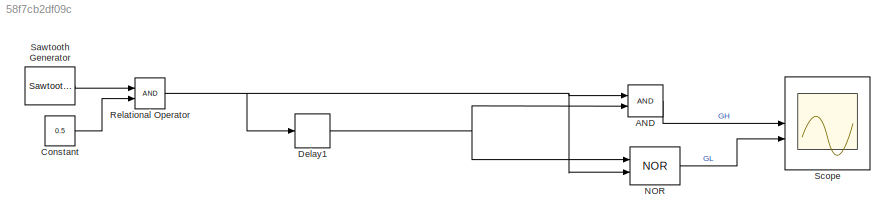
MODEL slx_58f7cb2df09c
KIND model
CONFIG AbsTol = auto
CONFIG EnableMultiTasking = off
CONFIG FixedStep = auto
CONFIG MaxStep = auto
CONFIG MinStep = auto
CONFIG PreLoadFcn = Fs = 10e4\nTs = 1/Fs\n\nTsamp = Ts/100;\n\nTd = Tsamp*3\nZdelay = round(Td/Tsamp)
CONFIG RelTol = 1e-3
CONFIG SampleTimeConstraint = Unconstrained
CONFIG SolverName = VariableStepAuto
CONFIG StartTime = 0.0
CONFIG StopTime = 10.0
BLOCK [Logic] AND
  AllPortsSameDT = off
  IconShape = distinctive
  OutDataTypeStr = boolean
BLOCK [Constant] Constant
  Value = 0.5
BLOCK [Delay] Delay1
  DelayLength = Zdelay
  InitialCondition = 0
  InputPortMap = u0
BLOCK [Logic] NOR
  AllPortsSameDT = off
  IconShape = distinctive
  Operator = NOR
  OutDataTypeStr = boolean
BLOCK [RelationalOperator] Relational Operator
  InputSameDT = off
  OutDataTypeStr = boolean
  RndMeth = Simplest
BLOCK [Reference] Sawtooth Generator  REF=spsSawtoothGeneratorLib/Sawtooth
Generator
  LibrarySourceBlock = sps_lib/Sources/Signal Generator Sources/Sawtooth\nGenerator
  SourceBlock = spsSawtoothGeneratorLib/Sawtooth\nGenerator
  SourceType = Sawtooth Generator
BLOCK [Scope] Scope
  Floating = off
  NumInputPorts = 2
  ScopeSpecificationString = Simulink.scopes.TimeScopeBlockCfg('CurrentConfiguration', extmgr.ConfigurationSet(extmgr.Configuration('Core','General UI',true),extmgr.Configuration('Core','Source UI',true),extmgr.Configuration('Sources','WiredSimulink',true),extmgr.Configuration('Visuals','Time Domain',true,'SerializedDisplays',{struct('MinYLimReal','-0.125','MaxYLimReal','1.125','YLabelReal','','MinYLimMag','0.00000','MaxYLimM...<+1717ch>
LINE AND:1 -> Scope:1
LINE Constant:1 -> Relational Operator:2
NET Delay1:1 -> AND:2, NOR:1
LINE NOR:1 -> Scope:2
NET Relational Operator:1 -> AND:1, Delay1:1, NOR:2
LINE Sawtooth Generator:1 -> Relational Operator:1
note: NET lines group one-source signal fan-out (src -> all destinations, sorted); 1:1 wires keep LINE
